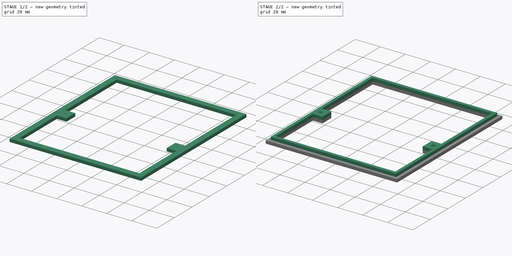
[diagram: build sequence overview — one tinted view per stage of 2, left to right]
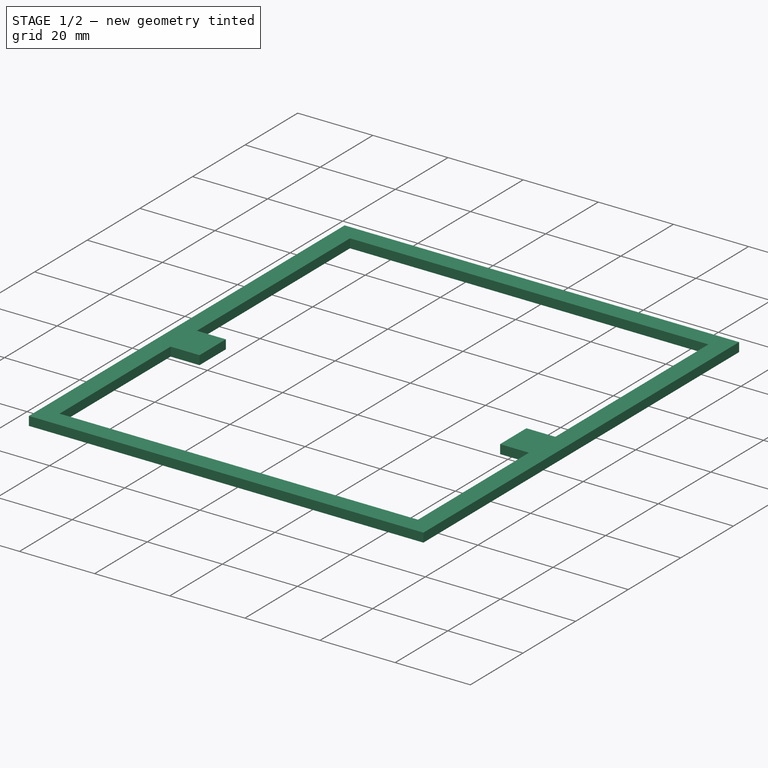
[diagram: stage 1 of 2 — iso view after this stage's code; geometry added in this stage tinted green]
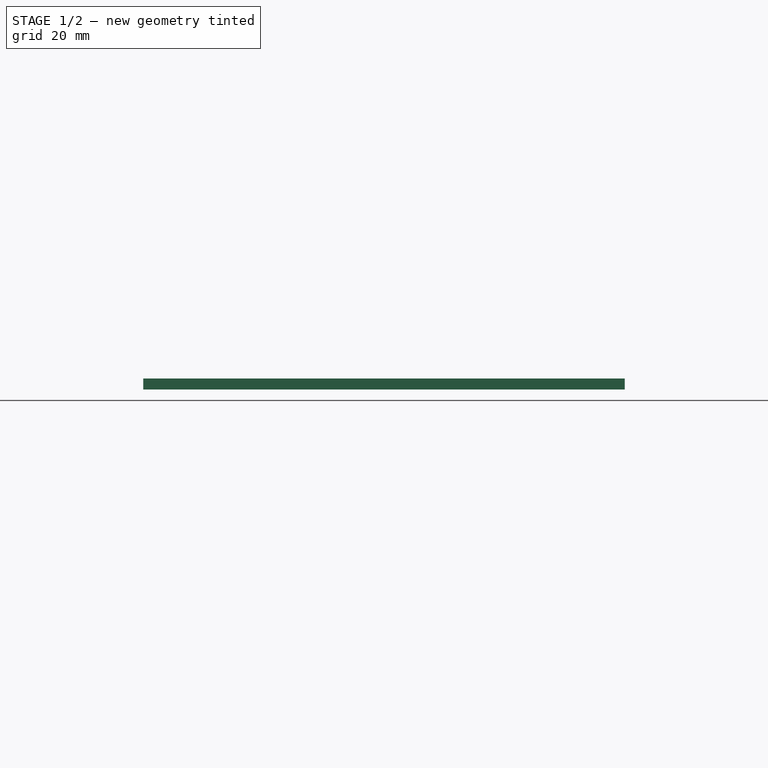
[diagram: stage 1 of 2 — front view after this stage's code; geometry added in this stage tinted green]
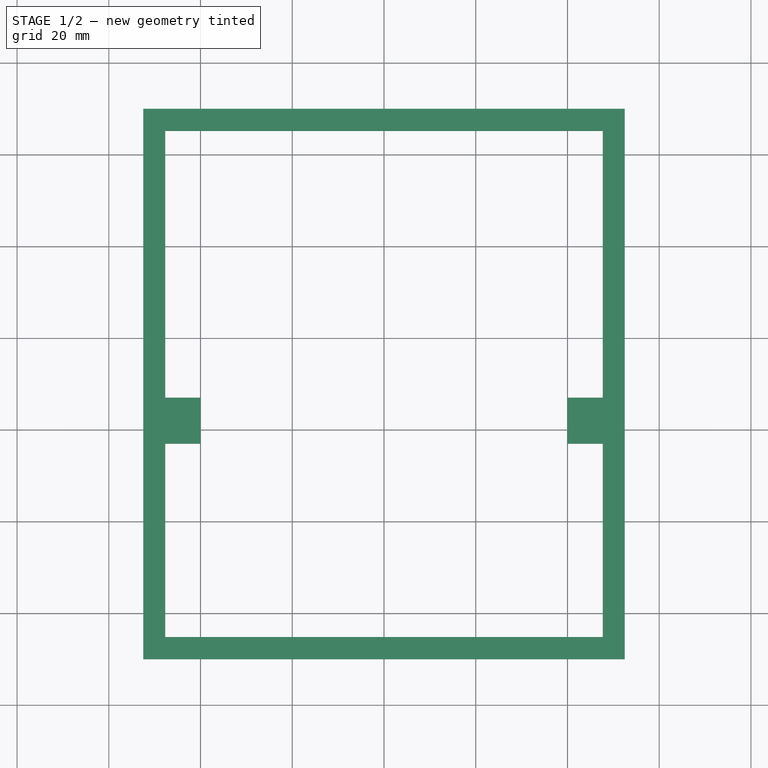
[diagram: stage 1 of 2 — top view after this stage's code; geometry added in this stage tinted green]
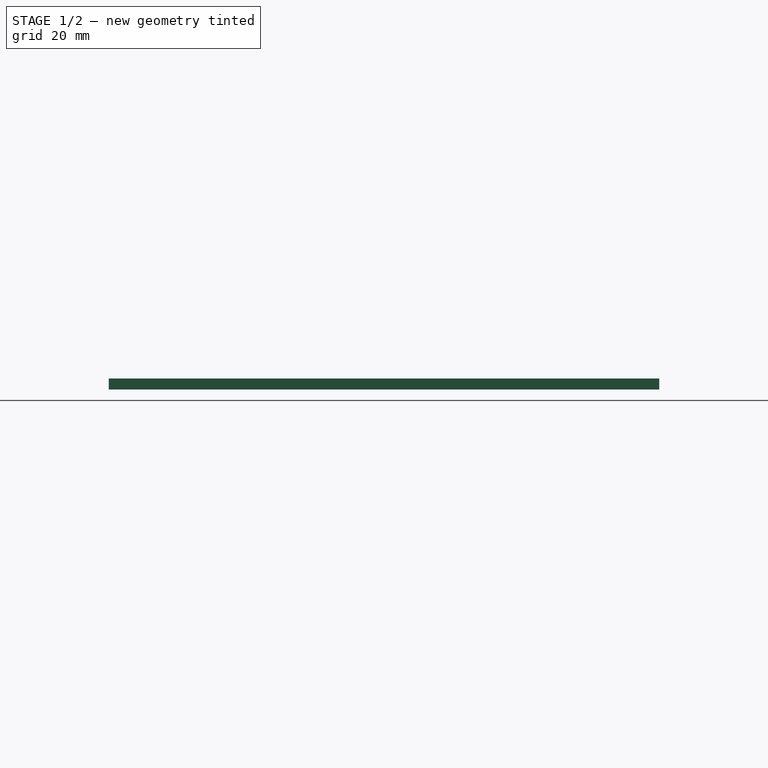
[diagram: stage 1 of 2 — right view after this stage's code; geometry added in this stage tinted green]
FCSTD DOCUMENT  (FreeCAD 0.16R6706 (Git))
Label: LidarChassis1
License: All rights reserved
LicenseURL: http://de.wikipedia.org/wiki/Alle_Rechte_vorbehalten
objects: Sketcher::SketchObject×4, PartDesign::Pad×2, PartDesign::Pocket×2
note: 12 computed .brp shape members not serialized (recipe doc carries the construction recipe); baked Part::Feature solids carry a one-line shape summary decoded from their .brp

FEATURE [Sketcher::SketchObject] Sketch  label="Bodenplatte"
  sketch-geometry (4):
    g0: LineSegment StartX=-52.5 StartY=50 StartZ=0 EndX=52.5 EndY=50 EndZ=0
    g1: LineSegment StartX=52.5 StartY=50 StartZ=0 EndX=52.5 EndY=-70 EndZ=0
    g2: LineSegment StartX=52.5 StartY=-70 StartZ=0 EndX=-52.5 EndY=-70 EndZ=0
    g3: LineSegment StartX=-52.5 StartY=-70 StartZ=0 EndX=-52.5 EndY=50 EndZ=0
  constraints (12):
    c: Coincident(g0,g1)
    c: Coincident(g1,g2)
    c: Coincident(g2,g3)
    c: Coincident(g3,g0)
    c: Horizontal(g0)
    c: Horizontal(g2)
    c: Vertical(g1)
    c: Vertical(g3)
    c: Symmetric(g0,g0,g-2)
    c: DistanceX(g0,g0) = 105
    c: DistanceY(g-1,g0) = 50
    c: DistanceY(g2,g-1) = 70
FEATURE [PartDesign::Pad] Pad
  Length = 2.4
  Length2 = 100
  Sketch = -> Sketch
  Type = 0
FEATURE [Sketcher::SketchObject] Sketch025  label="Ausschnitt"
  Placement = pos=(0,0,2.4) rot=(0,0,1;0rad)
  Support = -> Pad [Face6]
  sketch-geometry (12):
    g0: LineSegment StartX=-47.7 StartY=45.2 StartZ=0 EndX=-47.7 EndY=-13 EndZ=0
    g1: LineSegment StartX=-47.7 StartY=-13 StartZ=0 EndX=-40 EndY=-13 EndZ=0
    g2: LineSegment StartX=-40 StartY=-13 StartZ=0 EndX=-40 EndY=-23 EndZ=0
    g3: LineSegment StartX=-40 StartY=-23 StartZ=0 EndX=-47.7 EndY=-23 EndZ=0
    g4: LineSegment StartX=-47.7 StartY=-23 StartZ=0 EndX=-47.7 EndY=-65.2 EndZ=0
    g5: LineSegment StartX=-47.7 StartY=-65.2 StartZ=0 EndX=47.7 EndY=-65.2 EndZ=0
    g6: LineSegment StartX=47.7 StartY=-65.2 StartZ=0 EndX=47.7 EndY=-23 EndZ=0
    g7: LineSegment StartX=47.7 StartY=-23 StartZ=0 EndX=40 EndY=-23 EndZ=0
    g8: LineSegment StartX=40 StartY=-23 StartZ=0 EndX=40 EndY=-13 EndZ=0
    g9: LineSegment StartX=40 StartY=-13 StartZ=0 EndX=47.7 EndY=-13 EndZ=0
    g10: LineSegment StartX=47.7 StartY=-13 StartZ=0 EndX=47.7 EndY=45.2 EndZ=0
    g11: LineSegment StartX=47.7 StartY=45.2 StartZ=0 EndX=-47.7 EndY=45.2 EndZ=0
  constraints (35):
    c: Vertical(g0)
    c: Coincident(g0,g1)
    c: Horizontal(g1)
    c: Coincident(g1,g2)
    c: Vertical(g2)
    c: Coincident(g2,g3)
    c: Horizontal(g3)
    c: Coincident(g3,g4)
    c: Vertical(g4)
    c: Coincident(g4,g5)
    c: Horizontal(g5)
    c: Coincident(g5,g6)
    c: Vertical(g6)
    c: Coincident(g6,g7)
    c: Horizontal(g7)
    c: Coincident(g7,g8)
    c: Vertical(g8)
    c: Coincident(g8,g9)
    c: Horizontal(g9)
    c: Coincident(g9,g10)
    c: Vertical(g10)
    c: Coincident(g10,g11)
    c: Coincident(g11,g0)
    c: Horizontal(g11)
    c: Symmetric(g0,g10,g-2)
    c: Symmetric(g4,g5,g-2)
    c: Symmetric(g1,g8,g-2)
    c: DistanceY(g-1,g0) = 45.2
    c: DistanceY(g4,g-1) = 65.2
    c: DistanceX(g5,g5) = 95.4
    c: DistanceX(g11,g11) = 95.4
    c: DistanceY(g1,g-1) = 13
    c: DistanceY(g2,g-1) = 23
    c: DistanceX(g2,g-1) = 40
    c: Symmetric(g2,g7,g-2)
FEATURE [PartDesign::Pocket] Pocket001
  Length = 5
  Midplane = true
  Sketch = -> Sketch025
  Type = 1
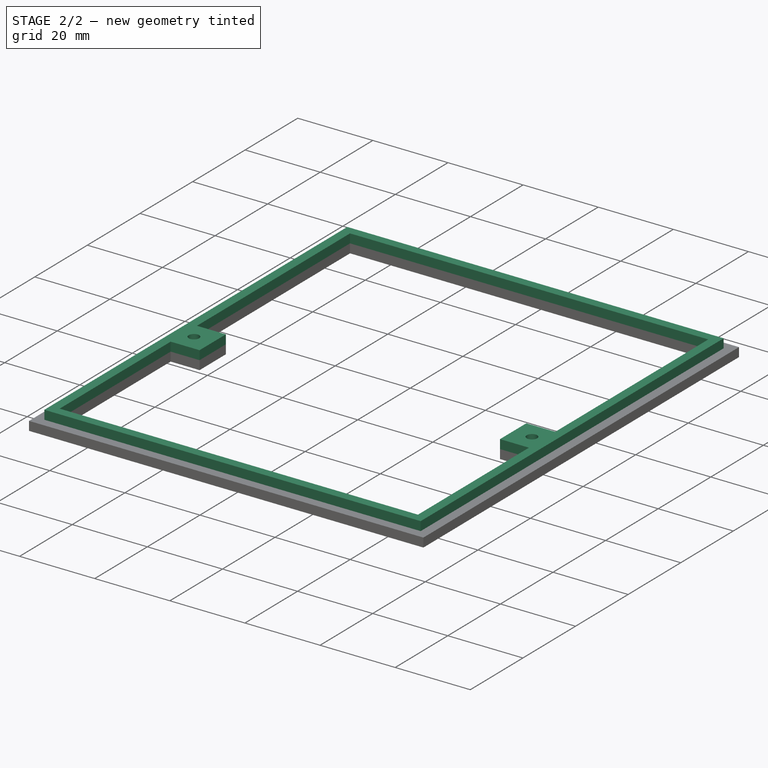
[diagram: stage 2 of 2 — iso view after this stage's code; geometry added in this stage tinted green]
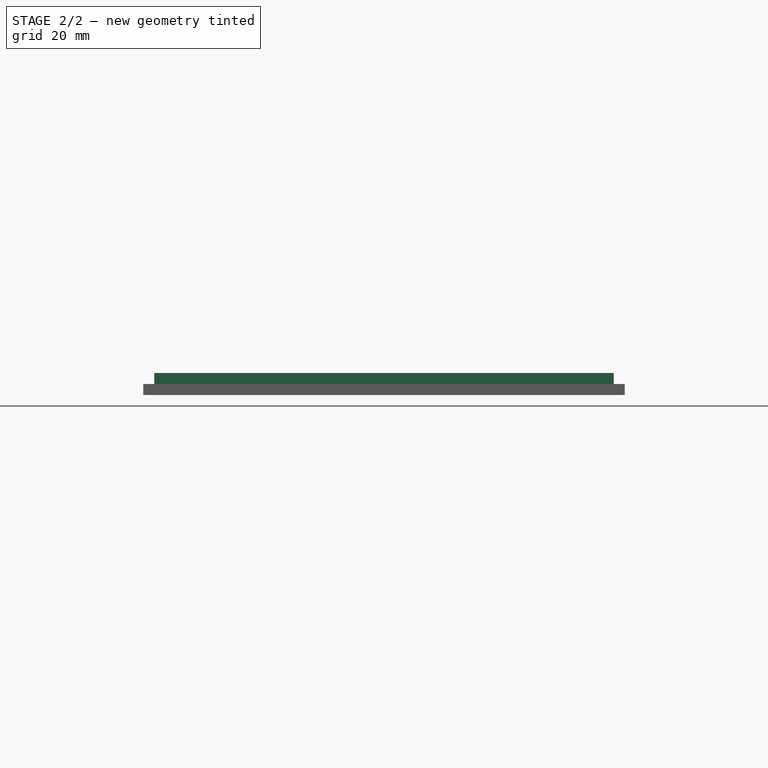
[diagram: stage 2 of 2 — front view after this stage's code; geometry added in this stage tinted green]
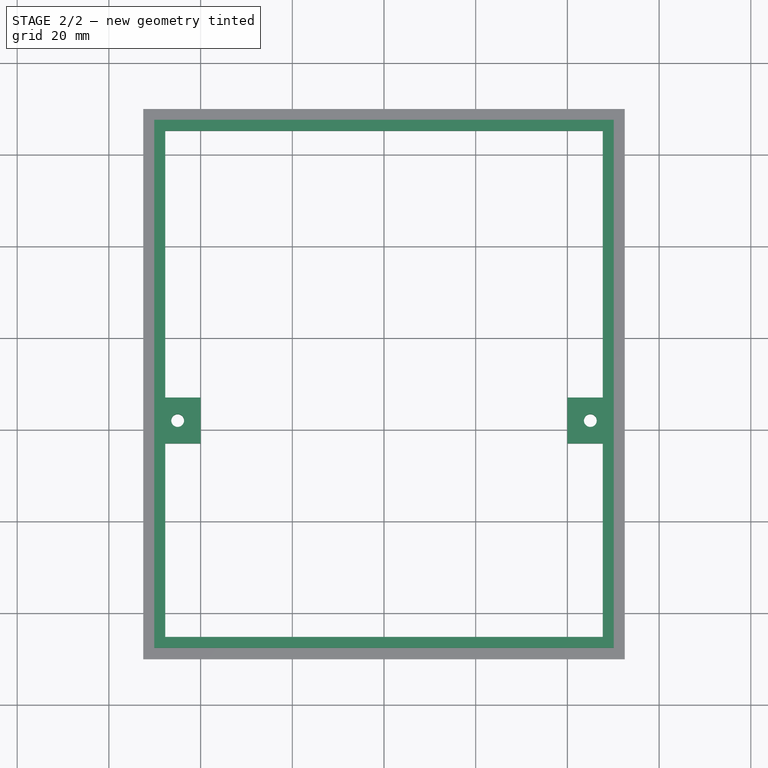
[diagram: stage 2 of 2 — top view after this stage's code; geometry added in this stage tinted green]
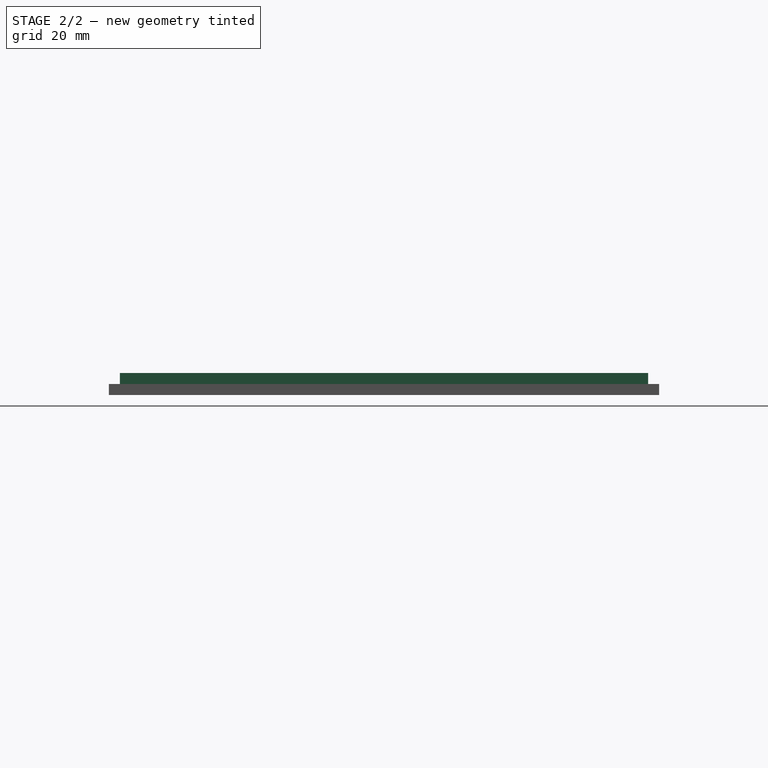
[diagram: stage 2 of 2 — right view after this stage's code; geometry added in this stage tinted green]
FEATURE [Sketcher::SketchObject] Sketch026  label="Rahmen"
  Placement = pos=(0,0,2.4) rot=(0,0,1;0rad)
  Support = -> Pocket001 [Face5]
  sketch-geometry (16):
    g0: LineSegment StartX=-50.1 StartY=47.6 StartZ=0 EndX=50.1 EndY=47.6 EndZ=0
    g1: LineSegment StartX=50.1 StartY=47.6 StartZ=0 EndX=50.1 EndY=-67.6 EndZ=0
    g2: LineSegment StartX=50.1 StartY=-67.6 StartZ=0 EndX=-50.1 EndY=-67.6 EndZ=0
    g3: LineSegment StartX=-50.1 StartY=-67.6 StartZ=0 EndX=-50.1 EndY=47.6 EndZ=0
    g4: LineSegment StartX=-47.7 StartY=45.2 StartZ=0 EndX=-47.7 EndY=-13 EndZ=0
    g5: LineSegment StartX=-47.7 StartY=-13 StartZ=0 EndX=-40 EndY=-13 EndZ=0
    g6: LineSegment StartX=-40 StartY=-13 StartZ=0 EndX=-40 EndY=-23 EndZ=0
    g7: LineSegment StartX=-40 StartY=-23 StartZ=0 EndX=-47.7 EndY=-23 EndZ=0
    g8: LineSegment StartX=-47.7 StartY=-23 StartZ=0 EndX=-47.7 EndY=-65.2 EndZ=0
    g9: LineSegment StartX=-47.7 StartY=-65.2 StartZ=0 EndX=47.7 EndY=-65.2 EndZ=0
    g10: LineSegment StartX=47.7 StartY=-65.2 StartZ=0 EndX=47.7 EndY=-23 EndZ=0
    g11: LineSegment StartX=47.7 StartY=-23 StartZ=0 EndX=40 EndY=-23 EndZ=0
    g12: LineSegment StartX=40 StartY=-23 StartZ=0 EndX=40 EndY=-13 EndZ=0
    g13: LineSegment StartX=40 StartY=-13 StartZ=0 EndX=47.7 EndY=-13 EndZ=0
    g14: LineSegment StartX=47.7 StartY=-13 StartZ=0 EndX=47.7 EndY=45.2 EndZ=0
    g15: LineSegment StartX=47.7 StartY=45.2 StartZ=0 EndX=-47.7 EndY=45.2 EndZ=0
  constraints (47):
    c: Coincident(g0,g1)
    c: Coincident(g1,g2)
    c: Coincident(g2,g3)
    c: Coincident(g3,g0)
    c: Horizontal(g0)
    c: Horizontal(g2)
    c: Vertical(g1)
    c: Vertical(g3)
    c: DistanceX(g0,g0) = 100.2
    c: DistanceY(g-1,g0) = 47.6
    c: DistanceY(g2,g-1) = 67.6
    c: Vertical(g4)
    c: Coincident(g4,g5)
    c: Horizontal(g5)
    c: Coincident(g5,g6)
    c: Vertical(g6)
    c: Coincident(g6,g7)
    c: Horizontal(g7)
    c: Coincident(g7,g8)
    c: Vertical(g8)
    c: Coincident(g8,g9)
    c: Horizontal(g9)
    c: Coincident(g9,g10)
    c: Vertical(g10)
    c: Coincident(g10,g11)
    c: Horizontal(g11)
    c: Coincident(g11,g12)
    c: Vertical(g12)
    c: Coincident(g12,g13)
    c: Horizontal(g13)
    c: Coincident(g13,g14)
    c: Vertical(g14)
    c: Coincident(g14,g15)
    c: Coincident(g15,g4)
    c: Horizontal(g15)
    c: Symmetric(g4,g14,g-2)
    c: DistanceX(g15,g15) = 95.4
    c: DistanceY(g-1,g4) = 45.2
    c: DistanceY(g8,g-1) = 65.2
    c: Symmetric(g8,g9,g-2)
    c: DistanceX(g9,g9) = 95.4
    c: Symmetric(g5,g12,g-2)
    c: Symmetric(g6,g11,g-2)
    c: DistanceY(g6,g6) = 10
    c: DistanceX(g6,g-1) = 40
    c: DistanceY(g5,g-1) = 13
    c: Symmetric(g2,g1,g-2)
FEATURE [PartDesign::Pad] Pad001
  Length = 2.4
  Length2 = 100
  Sketch = -> Sketch026
  Type = 0
FEATURE [Sketcher::SketchObject] Sketch024  label="Befestigungsloecher"
  Placement = pos=(0,0,4.8) rot=(0,0,1;0rad)
  Support = -> Pad001 [Face35]
  sketch-geometry (2):
    g0: Circle CenterX=-45 CenterY=-18 CenterZ=0 NormalX=0 NormalY=0 NormalZ=1 Radius=1.4
    g1: Circle CenterX=45 CenterY=-18 CenterZ=0 NormalX=0 NormalY=0 NormalZ=1 Radius=1.4
  constraints (5):
    c: Symmetric(g0,g1,g-2)
    c: DistanceY(g0,g-1) = 18
    c: DistanceX(g0,g-1) = 45
    c: Radius(g0) = 1.4
    c: Radius(g1) = 1.4
FEATURE [PartDesign::Pocket] Pocket
  Length = 5
  Sketch = -> Sketch024
  Type = 0
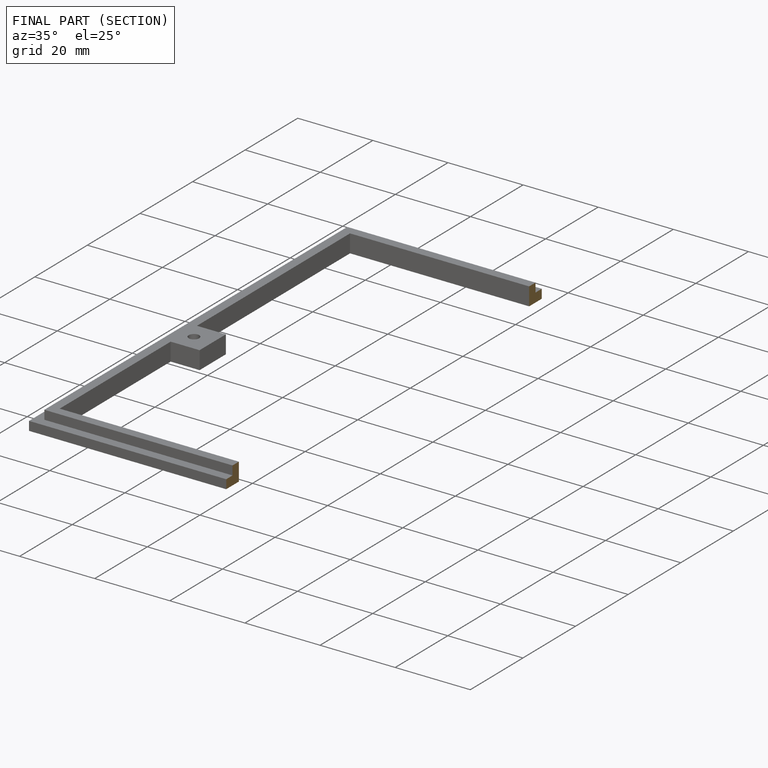
[diagram: finished part — half-section view (interior)]
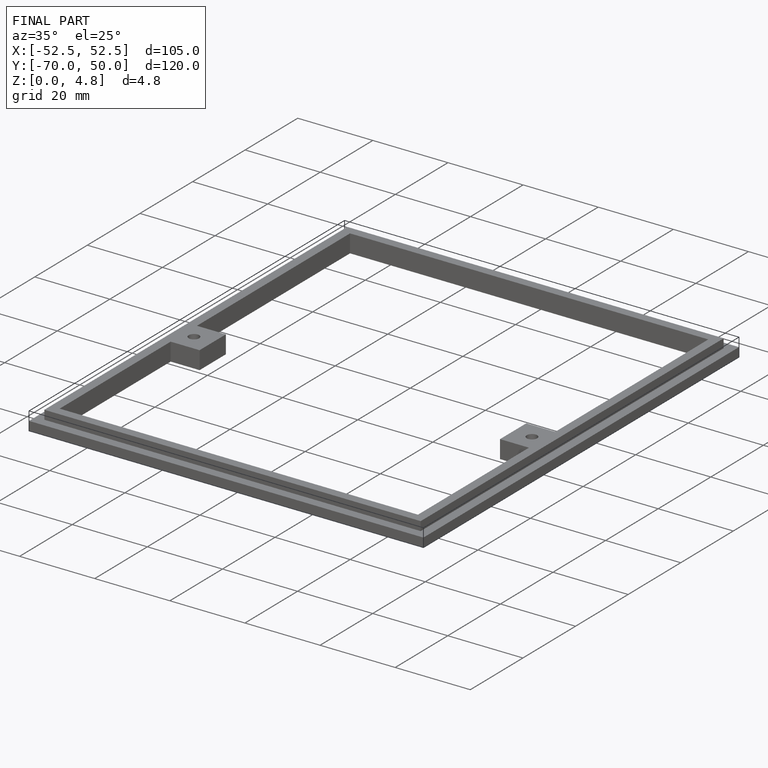
[diagram: finished part — iso view with bounding-box wireframe]
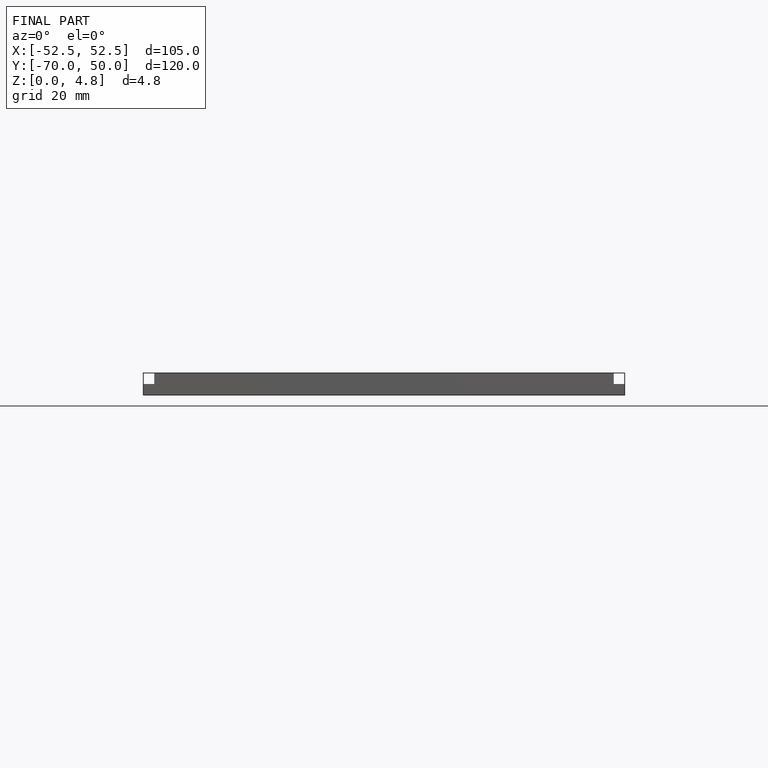
[diagram: finished part — front view with bounding-box wireframe]
